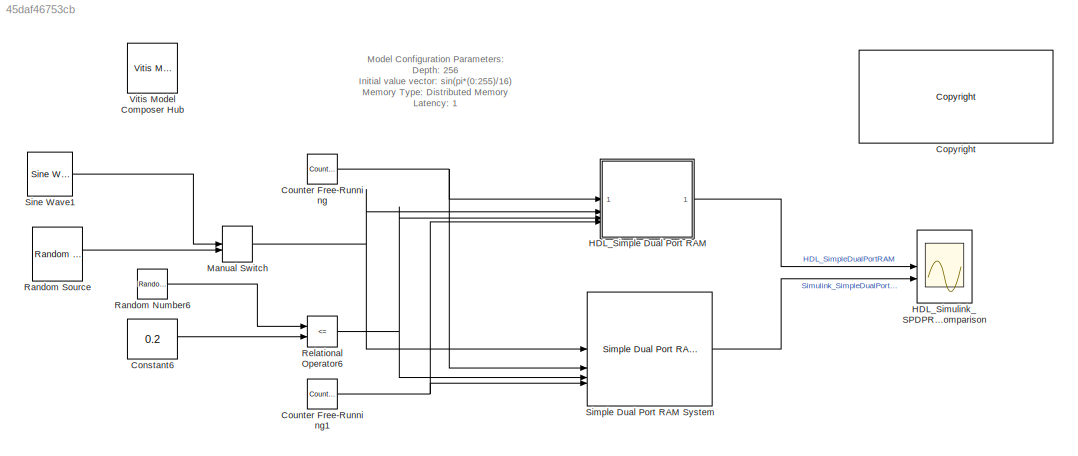
MODEL slx_45daf46753cb
KIND model
CONFIG AbsTol = auto
CONFIG EnableMultiTasking = off
CONFIG FixedStep = auto
CONFIG MaxStep = auto
CONFIG MinStep = auto
CONFIG RelTol = 1e-3
CONFIG SampleTimeConstraint = Unconstrained
CONFIG SolverName = VariableStepAuto
CONFIG StartTime = 0.0
CONFIG StopTime = 1e3
BLOCK [Constant] Constant6
  Value = 0.2
BLOCK [Reference] <copyright redacted>
  SourceBlock = hdlUtilities/<copyright redacted>
  SourceType = Xilinx <copyright redacted>
BLOCK [Reference] Counter Free-Running  REF=hdlsllib/Sources/Counter
Free-Running
  SourceBlock = hdlsllib/Sources/Counter\nFree-Running
  SourceType = Counter Free-Running
BLOCK [Reference] Counter Free-Running1  REF=hdlsllib/Sources/Counter
Free-Running
  SourceBlock = hdlsllib/Sources/Counter\nFree-Running
  SourceType = Counter Free-Running
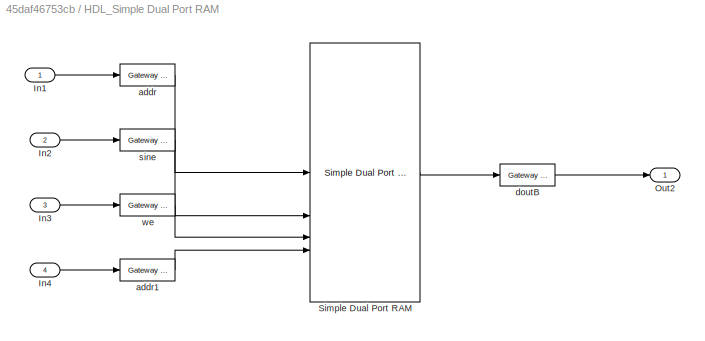
BLOCK [SubSystem] HDL_Simple Dual Port RAM
BLOCK [Inport] HDL_Simple Dual Port RAM/In1
BLOCK [Inport] HDL_Simple Dual Port RAM/In2
  Port = 2
BLOCK [Inport] HDL_Simple Dual Port RAM/In3
  Port = 3
BLOCK [Inport] HDL_Simple Dual Port RAM/In4
  Port = 4
BLOCK [Outport] HDL_Simple Dual Port RAM/Out2
BLOCK [Reference] HDL_Simple Dual Port RAM/Simple Dual Port RAM  REF=hdlBasic/Simple Dual Port RAM
  SourceBlock = hdlBasic/Simple Dual Port RAM
  SourceType = Simple Dual Port Random Access Memory Block
BLOCK [Reference] HDL_Simple Dual Port RAM/addr  REF=hdlBasic/Gateway In
  SourceBlock = hdlBasic/Gateway In
  SourceType = Gateway In Block
BLOCK [Reference] HDL_Simple Dual Port RAM/addr1  REF=hdlBasic/Gateway In
  SourceBlock = hdlBasic/Gateway In
  SourceType = Gateway In Block
BLOCK [Reference] HDL_Simple Dual Port RAM/doutB  REF=hdlBasic/Gateway Out
  SourceBlock = hdlBasic/Gateway Out
  SourceType = Gateway Out Block
BLOCK [Reference] HDL_Simple Dual Port RAM/sine  REF=hdlBasic/Gateway In
  SourceBlock = hdlBasic/Gateway In
  SourceType = Gateway In Block
BLOCK [Reference] HDL_Simple Dual Port RAM/we  REF=hdlBasic/Gateway In
  SourceBlock = hdlBasic/Gateway In
  SourceType = Gateway In Block
BLOCK [Scope] HDL_Simulink_SPDPRAM_Comparison
  Floating = off
  NumInputPorts = 2
  ScopeSpecificationString = Simulink.scopes.TimeScopeBlockCfg('CurrentConfiguration', extmgr.ConfigurationSet(extmgr.Configuration('Core','General UI',true,'DisplayFullSourceName',false,'ShowMainToolbar',true),extmgr.Configuration('Sources','WiredSimulink',true,'DataLogging',false,'DataLoggingVariableName','ScopeData','DataLoggingLimitDataPoints',false,'DataLoggingMaxPoints','5000','DataLoggingDecimateData',true,'DataLogging...<+2016ch>
BLOCK [ManualSwitch] Manual Switch
BLOCK [RandomNumber] Random Number6
  SampleTime = 0
  Seed = 65536
BLOCK [Reference] Random Source  REF=dspobslib/Random
Source
  SourceBlock = dspobslib/Random\nSource
  SourceType = Random Source Obsolete
BLOCK [RelationalOperator] Relational Operator6
  Operator = <=
BLOCK [Reference] Simple Dual Port RAM System  REF=hdlsllib/HDL RAMs/Simple Dual Port
RAM System
  SourceBlock = hdlsllib/HDL RAMs/Simple Dual Port\nRAM System
  SourceType = hdl.RAM
BLOCK [Reference] Sine Wave1  REF=dspsrcs4/Sine Wave
  SourceBlock = dspsrcs4/Sine Wave
  SourceType = Sine Wave
BLOCK [Reference] Vitis Model Composer Hub  REF=vmcUtilities/Vitis Model Composer Hub
  SourceBlock = vmcUtilities/Vitis Model Composer Hub
  SourceType = VMC Hub
  Tag = genX
  UserDataPersistent = on
ANNOTATION (root): Model Configuration Parameters: Depth: 256 Initial value vector: sin(pi*(0:255)/16) Memory Type: Distributed Memory Latency: 1
LINE Constant6:1 -> Relational Operator6:2
NET Counter Free-Running1:1 -> HDL_Simple Dual Port RAM:4, Simple Dual Port RAM System:4
NET Counter Free-Running:1 -> HDL_Simple Dual Port RAM:1, Simple Dual Port RAM System:2
LINE HDL_Simple Dual Port RAM/In1:1 -> HDL_Simple Dual Port RAM/addr:1
LINE HDL_Simple Dual Port RAM/In2:1 -> HDL_Simple Dual Port RAM/sine:1
LINE HDL_Simple Dual Port RAM/In3:1 -> HDL_Simple Dual Port RAM/we:1
LINE HDL_Simple Dual Port RAM/In4:1 -> HDL_Simple Dual Port RAM/addr1:1
LINE HDL_Simple Dual Port RAM/Simple Dual Port RAM:1 -> HDL_Simple Dual Port RAM/doutB:1
LINE HDL_Simple Dual Port RAM/addr1:1 -> HDL_Simple Dual Port RAM/Simple Dual Port RAM:4
LINE HDL_Simple Dual Port RAM/addr:1 -> HDL_Simple Dual Port RAM/Simple Dual Port RAM:1
LINE HDL_Simple Dual Port RAM/doutB:1 -> HDL_Simple Dual Port RAM/Out2:1
LINE HDL_Simple Dual Port RAM/sine:1 -> HDL_Simple Dual Port RAM/Simple Dual Port RAM:2
LINE HDL_Simple Dual Port RAM/we:1 -> HDL_Simple Dual Port RAM/Simple Dual Port RAM:3
LINE HDL_Simple Dual Port RAM:1 -> HDL_Simulink_SPDPRAM_Comparison:1
NET Manual Switch:1 -> HDL_Simple Dual Port RAM:2, Simple Dual Port RAM System:1
LINE Random Number6:1 -> Relational Operator6:1
LINE Random Source:1 -> Manual Switch:2
NET Relational Operator6:1 -> HDL_Simple Dual Port RAM:3, Simple Dual Port RAM System:3
LINE Simple Dual Port RAM System:1 -> HDL_Simulink_SPDPRAM_Comparison:2
LINE Sine Wave1:1 -> Manual Switch:1
note: NET lines group one-source signal fan-out (src -> all destinations, sorted); 1:1 wires keep LINE
